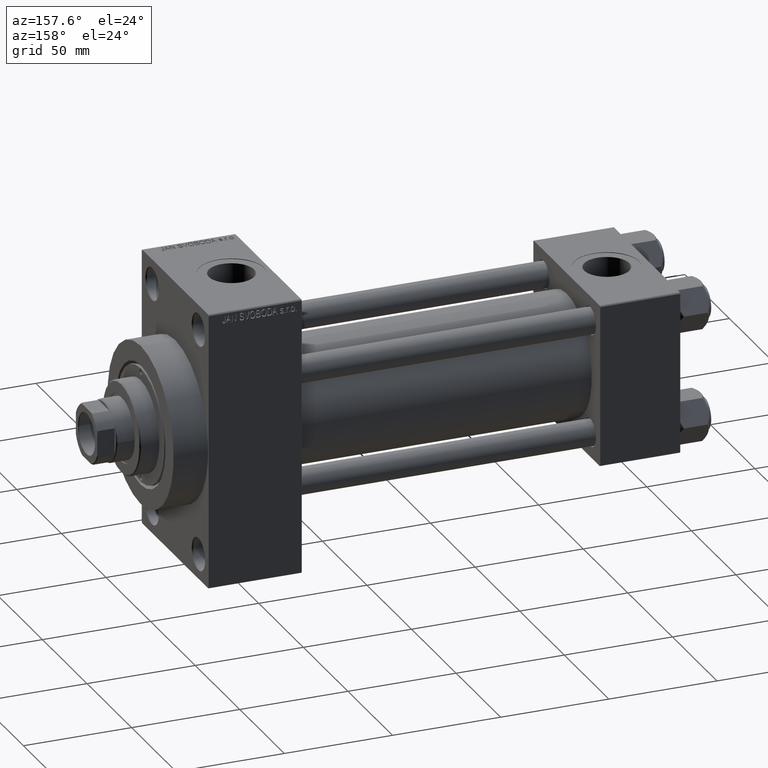
[diagram: clean part render]
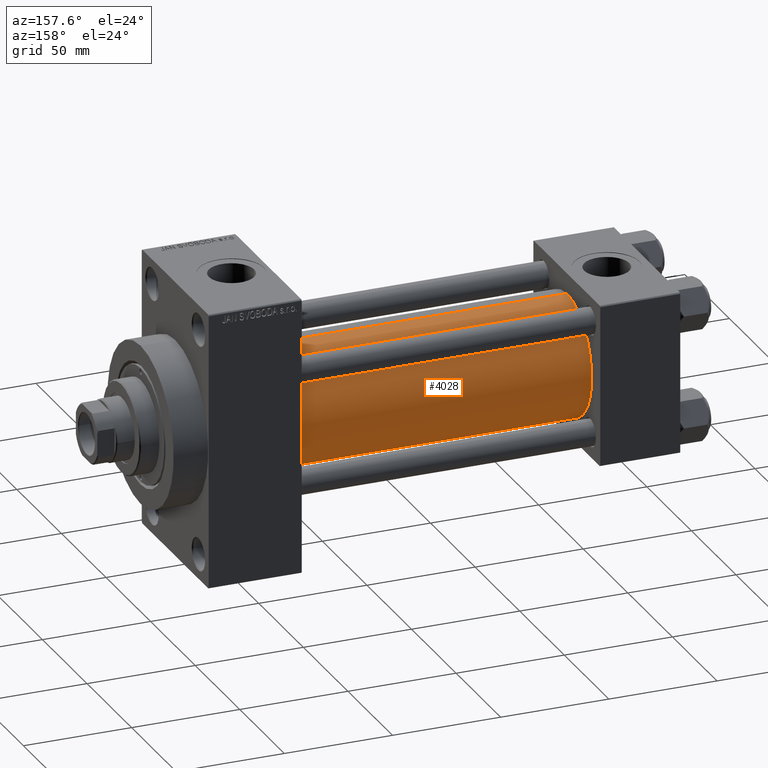
[diagram: same view with one face highlighted and labeled with its STEP entity id]
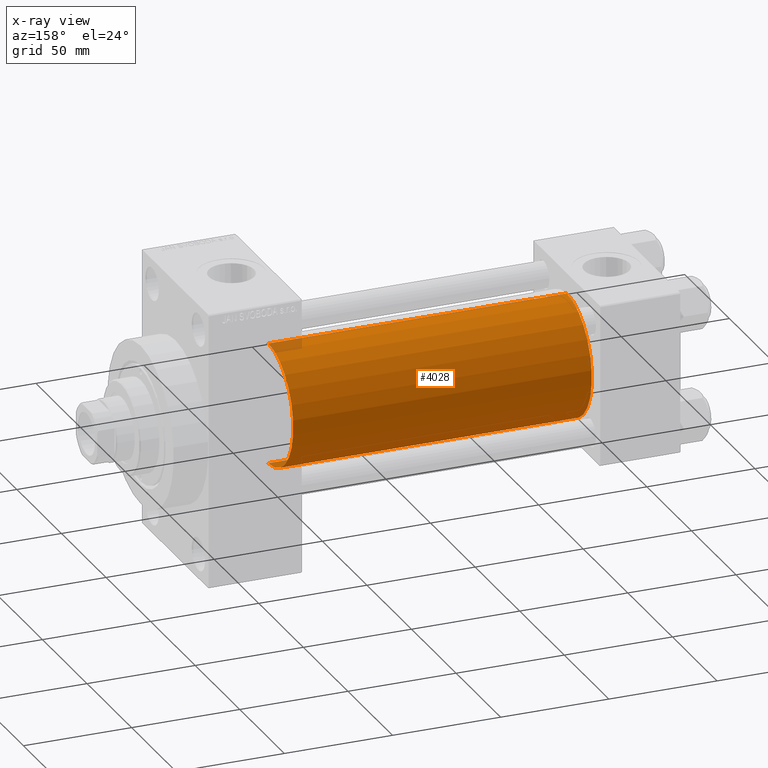
[diagram: x-ray of the same camera — body ghosted, the highlighted face saturated]
A machine part, auxiliary view. The second image highlights one B-rep face of the part: STEP entity #4028.
The next image is the same camera in x-ray: the body ghosted, the highlighted face saturated — about 1% of this face is hidden behind the body in this view.
In plain terms, the highlighted cylindrical surface (partial cylindrical patch) has radius 28 mm, axis along (-1, -0, -0).
Its self-contained STEP definition (entity closure, byte-faithful):
#867 = VERTEX_POINT ( 'NONE', #29668 ) ;
#3814 = ORIENTED_EDGE ( 'NONE', *, *, #34394, .F. ) ;
#4028 = ADVANCED_FACE ( 'NONE', ( #16822 ), #42924, .T. ) ;
#10101 = DIRECTION ( 'NONE',  ( 0.000000000000000000, 0.000000000000000000, 1.000000000000000000 ) ) ;
#11589 = CARTESIAN_POINT ( 'NONE',  ( 175.0000000000000284, -2.602085213965210642E-15, 28.00000000000000000 ) ) ;
#13339 = DIRECTION ( 'NONE',  ( 1.000000000000000000, 0.000000000000000000, 0.000000000000000000 ) ) ;
#13468 = DIRECTION ( 'NONE',  ( -1.000000000000000000, -0.000000000000000000, -0.000000000000000000 ) ) ;
#14719 = ORIENTED_EDGE ( 'NONE', *, *, #45595, .T. ) ;
#15190 = AXIS2_PLACEMENT_3D ( 'NONE', #22498, #38064, #44546 ) ;
#15203 = LINE ( 'NONE', #11589, #40488 ) ;
#16044 = CIRCLE ( 'NONE', #41340, 28.00000000000000000 ) ;
#16195 = ORIENTED_EDGE ( 'NONE', *, *, #30606, .T. ) ;
#16822 = FACE_OUTER_BOUND ( 'NONE', #46385, .T. ) ;
#18113 = CARTESIAN_POINT ( 'NONE',  ( 37.00000000000000711, -2.602085213965210642E-15, 28.00000000000000000 ) ) ;
#19794 = CARTESIAN_POINT ( 'NONE',  ( 175.0000000000000284, 8.269258236473784371E-16, -28.00000000000000000 ) ) ;
#22179 = CARTESIAN_POINT ( 'NONE',  ( 175.0000000000000284, -2.602085213965210642E-15, 28.00000000000000000 ) ) ;
#22498 = CARTESIAN_POINT ( 'NONE',  ( 37.00000000000000711, -2.602085213965210642E-15, 0.000000000000000000 ) ) ;
#23403 = DIRECTION ( 'NONE',  ( -1.000000000000000000, -0.000000000000000000, -0.000000000000000000 ) ) ;
#23953 = CARTESIAN_POINT ( 'NONE',  ( 37.00000000000000711, 8.269258236473784371E-16, -28.00000000000000000 ) ) ;
#25046 = ORIENTED_EDGE ( 'NONE', *, *, #27836, .F. ) ;
#25662 = VERTEX_POINT ( 'NONE', #18113 ) ;
#26579 = VERTEX_POINT ( 'NONE', #22179 ) ;
#27836 = EDGE_CURVE ( 'NONE', #26579, #25662, #15203, .T. ) ;
#29668 = CARTESIAN_POINT ( 'NONE',  ( 175.0000000000000284, 8.269258236473784371E-16, -28.00000000000000000 ) ) ;
#30606 = EDGE_CURVE ( 'NONE', #36878, #25662, #35089, .T. ) ;
#31539 = CARTESIAN_POINT ( 'NONE',  ( 175.0000000000000284, -2.602085213965210642E-15, 0.000000000000000000 ) ) ;
#31903 = CARTESIAN_POINT ( 'NONE',  ( 175.0000000000000284, -2.602085213965210642E-15, 0.000000000000000000 ) ) ;
#34394 = EDGE_CURVE ( 'NONE', #867, #26579, #16044, .T. ) ;
#35089 = CIRCLE ( 'NONE', #15190, 28.00000000000000000 ) ;
#36216 = VECTOR ( 'NONE', #23403, 1000.000000000000000 ) ;
#36878 = VERTEX_POINT ( 'NONE', #23953 ) ;
#38064 = DIRECTION ( 'NONE',  ( 1.000000000000000000, -0.000000000000000000, 0.000000000000000000 ) ) ;
#39440 = DIRECTION ( 'NONE',  ( 0.000000000000000000, 0.000000000000000000, -1.000000000000000000 ) ) ;
#40488 = VECTOR ( 'NONE', #41062, 1000.000000000000000 ) ;
#41062 = DIRECTION ( 'NONE',  ( -1.000000000000000000, -0.000000000000000000, -0.000000000000000000 ) ) ;
#41340 = AXIS2_PLACEMENT_3D ( 'NONE', #31539, #13339, #39440 ) ;
#42924 = CYLINDRICAL_SURFACE ( 'NONE', #46001, 28.00000000000000000 ) ;
#44546 = DIRECTION ( 'NONE',  ( 0.000000000000000000, 0.000000000000000000, 1.000000000000000000 ) ) ;
#44738 = LINE ( 'NONE', #19794, #36216 ) ;
#45595 = EDGE_CURVE ( 'NONE', #867, #36878, #44738, .T. ) ;
#46001 = AXIS2_PLACEMENT_3D ( 'NONE', #31903, #13468, #10101 ) ;
#46385 = EDGE_LOOP ( 'NONE', ( #3814, #14719, #16195, #25046 ) ) ;